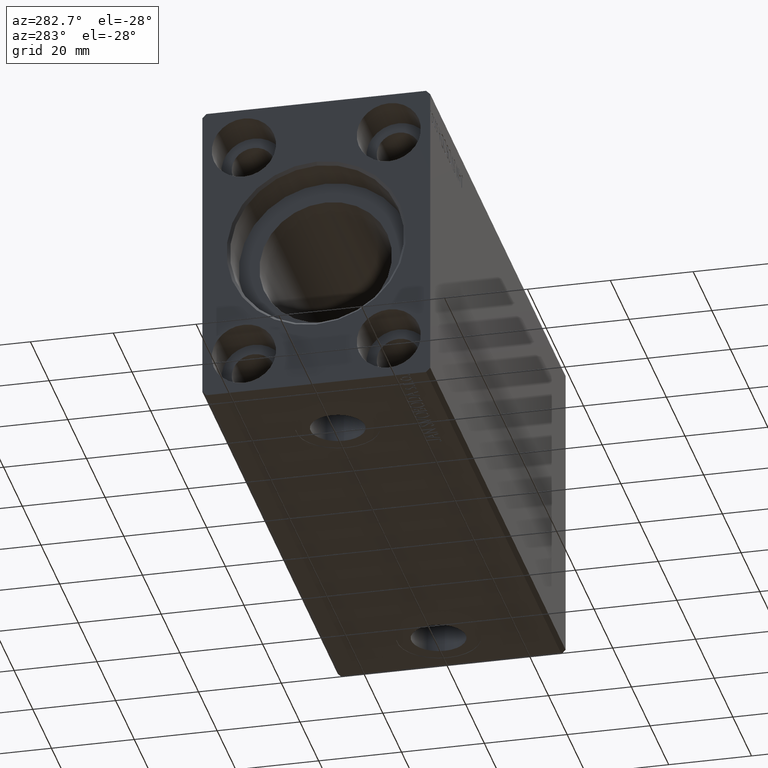
[diagram: clean part render]
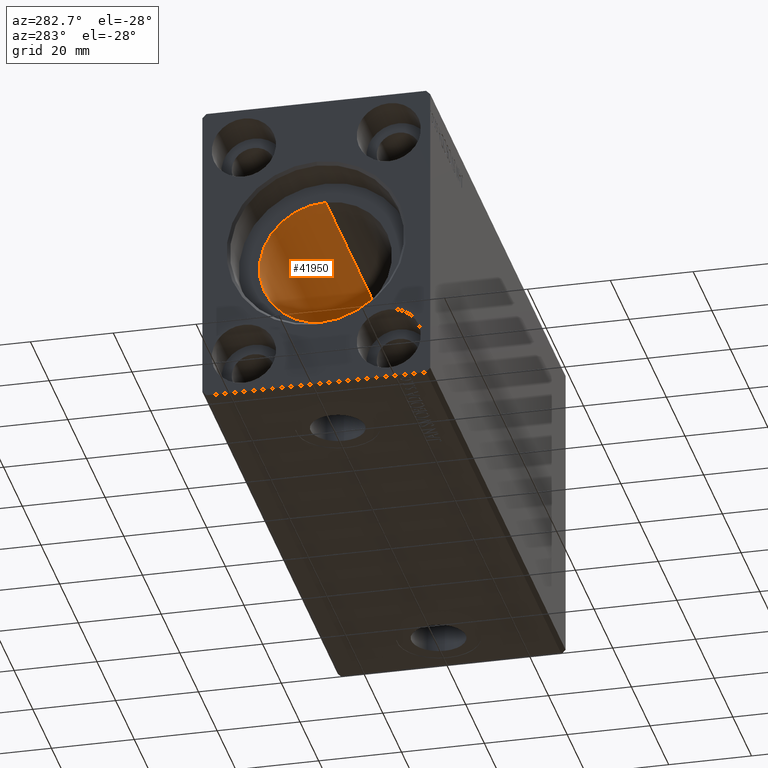
[diagram: same view with one face highlighted and labeled with its STEP entity id]
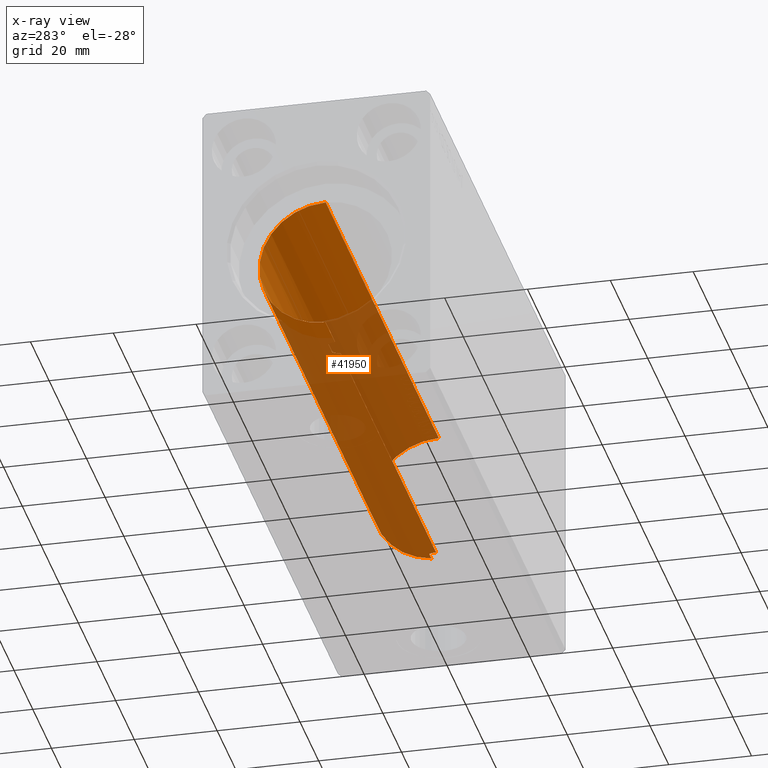
[diagram: x-ray of the same camera — body ghosted, the highlighted face saturated]
A machine part, auxiliary view. The second image highlights one B-rep face of the part: STEP entity #41950.
The next image is the same camera in x-ray: the body ghosted, the highlighted face saturated — about 65% of this face is hidden behind the body in this view.
In plain terms, the highlighted cylindrical surface (partial cylindrical patch) has radius 16 mm, axis along (-1, -0, -0).
Its self-contained STEP definition (entity closure, byte-faithful):
#190 = LINE ( 'NONE', #16563, #36250 ) ;
#837 = ORIENTED_EDGE ( 'NONE', *, *, #12826, .T. ) ;
#1495 = DIRECTION ( 'NONE',  ( -1.000000000000000000, -0.000000000000000000, -0.000000000000000000 ) ) ;
#1894 = VERTEX_POINT ( 'NONE', #35995 ) ;
#1908 = CARTESIAN_POINT ( 'NONE',  ( 20.90894763336742912, 1.786057109949259036, -15.89999999999998970 ) ) ;
#2556 = CARTESIAN_POINT ( 'NONE',  ( 20.36400824168861234, 0.8002234119869107154, -15.98070334047259777 ) ) ;
#3039 = CARTESIAN_POINT ( 'NONE',  ( 128.7082842211411560, 1.528580496451071635, -15.92742812959714982 ) ) ;
#3145 = FACE_OUTER_BOUND ( 'NONE', #22055, .T. ) ;
#3562 = CARTESIAN_POINT ( 'NONE',  ( 20.25000000000000000, 1.952197298178576320E-15, -16.00000000000000000 ) ) ;
#3863 = VERTEX_POINT ( 'NONE', #20881 ) ;
#3925 = DIRECTION ( 'NONE',  ( 0.000000000000000000, 0.000000000000000000, 1.000000000000000000 ) ) ;
#4565 = EDGE_CURVE ( 'NONE', #10942, #18548, #36695, .T. ) ;
#4993 = CARTESIAN_POINT ( 'NONE',  ( 25.73536268302067853, 0.3260974502564771282, -15.99746611559688780 ) ) ;
#5653 = CARTESIAN_POINT ( 'NONE',  ( 25.63617786229477957, 0.7997846173174859574, -15.98073294566550473 ) ) ;
#5775 = VERTEX_POINT ( 'NONE', #6710 ) ;
#5830 = B_SPLINE_CURVE_WITH_KNOTS ( 'NONE', 3,
 ( #11841, #15505, #38127, #9047, #2556, #18515, #41787, #31226, #32099, #1908 ),
 .UNSPECIFIED., .F., .F.,
 ( 4, 2, 2, 2, 4 ),
 ( 0.001937515079377276567, 0.002421672136522722528, 0.002905829193668168706, 0.003389986250813614450, 0.003874143307959060194 ),
 .UNSPECIFIED. ) ;
#5946 = CARTESIAN_POINT ( 'NONE',  ( 25.09105236663257088, 1.786057109949259036, -15.89999999999998970 ) ) ;
#6070 = AXIS2_PLACEMENT_3D ( 'NONE', #42586, #29654, #32887 ) ;
#6521 = LINE ( 'NONE', #12983, #9460 ) ;
#6710 = CARTESIAN_POINT ( 'NONE',  ( 131.1999999999999886, 1.786057109949259036, -15.89999999999998970 ) ) ;
#6912 = DIRECTION ( 'NONE',  ( -1.000000000000000000, -0.000000000000000000, -0.000000000000000000 ) ) ;
#6961 = VECTOR ( 'NONE', #13426, 1000.000000000000000 ) ;
#7261 = ORIENTED_EDGE ( 'NONE', *, *, #16522, .T. ) ;
#8231 = CARTESIAN_POINT ( 'NONE',  ( 25.30299467954352011, 1.537922561208759253, -15.92787311163533914 ) ) ;
#9047 = CARTESIAN_POINT ( 'NONE',  ( 20.32103554224154607, 0.6416550435731651625, -15.98791951246752241 ) ) ;
#9188 = VERTEX_POINT ( 'NONE', #5946 ) ;
#9313 = CARTESIAN_POINT ( 'NONE',  ( 128.2499999999999716, 0.1628529246558446664, -16.00000000000000000 ) ) ;
#9460 = VECTOR ( 'NONE', #1495, 1000.000000000000000 ) ;
#9980 = EDGE_CURVE ( 'NONE', #5775, #3863, #31987, .T. ) ;
#10942 = VERTEX_POINT ( 'NONE', #3562 ) ;
#11841 = CARTESIAN_POINT ( 'NONE',  ( 20.25000000000000000, 1.952197298178576320E-15, -16.00000000000000000 ) ) ;
#11903 = CARTESIAN_POINT ( 'NONE',  ( 128.5452919902453459, 1.250171241089536256, -15.95169574138015989 ) ) ;
#12649 = EDGE_CURVE ( 'NONE', #19444, #5775, #29703, .T. ) ;
#12826 = EDGE_CURVE ( 'NONE', #13636, #18548, #14546, .T. ) ;
#12983 = CARTESIAN_POINT ( 'NONE',  ( 131.1999999999999886, 1.786057109949259036, -15.89999999999998970 ) ) ;
#13426 = DIRECTION ( 'NONE',  ( -1.000000000000000000, -0.000000000000000000, -0.000000000000000000 ) ) ;
#13636 = VERTEX_POINT ( 'NONE', #16615 ) ;
#14259 = DIRECTION ( 'NONE',  ( 0.000000000000000000, 0.000000000000000000, 1.000000000000000000 ) ) ;
#14460 = CARTESIAN_POINT ( 'NONE',  ( 9.999999999999994671, 0.000000000000000000, 0.000000000000000000 ) ) ;
#14546 = CIRCLE ( 'NONE', #36596, 16.00000000000000000 ) ;
#14912 = CARTESIAN_POINT ( 'NONE',  ( 25.46669777805105639, 1.258673386848676135, -15.95335904956524864 ) ) ;
#15082 = ORIENTED_EDGE ( 'NONE', *, *, #12649, .F. ) ;
#15263 = ORIENTED_EDGE ( 'NONE', *, *, #36745, .T. ) ;
#15350 = CARTESIAN_POINT ( 'NONE',  ( 128.4763581403532555, 1.104555034037126848, -15.96255602784426841 ) ) ;
#15446 = VERTEX_POINT ( 'NONE', #38602 ) ;
#15505 = CARTESIAN_POINT ( 'NONE',  ( 20.25000000000000000, 0.1628529246558463039, -16.00000000000000000 ) ) ;
#15563 = CARTESIAN_POINT ( 'NONE',  ( 128.8030230027346192, 1.662044306363393842, -15.91393043707982002 ) ) ;
#15984 = CARTESIAN_POINT ( 'NONE',  ( 128.2643523021424699, 0.3237335850403373350, -15.99751506009603652 ) ) ;
#16013 = ORIENTED_EDGE ( 'NONE', *, *, #32327, .F. ) ;
#16295 = CYLINDRICAL_SURFACE ( 'NONE', #6070, 16.00000000000000000 ) ;
#16522 = EDGE_CURVE ( 'NONE', #19444, #13636, #23292, .T. ) ;
#16563 = CARTESIAN_POINT ( 'NONE',  ( 131.1999999999999886, 1.959434878635765131E-15, -16.00000000000000000 ) ) ;
#16615 = CARTESIAN_POINT ( 'NONE',  ( 9.999999999999994671, 0.000000000000000000, 16.00000000000000000 ) ) ;
#16630 = AXIS2_PLACEMENT_3D ( 'NONE', #33252, #23761, #3925 ) ;
#16820 = CARTESIAN_POINT ( 'NONE',  ( 131.1999999999999886, 0.000000000000000000, 16.00000000000000000 ) ) ;
#18515 = CARTESIAN_POINT ( 'NONE',  ( 20.47635814035335855, 1.104555034037125516, -15.96255602784426841 ) ) ;
#18548 = VERTEX_POINT ( 'NONE', #23489 ) ;
#19444 = VERTEX_POINT ( 'NONE', #23969 ) ;
#19592 = CARTESIAN_POINT ( 'NONE',  ( 25.67843830749630740, 0.6438297815899759469, -15.98783114994251697 ) ) ;
#19719 = VERTEX_POINT ( 'NONE', #32991 ) ;
#19777 = ORIENTED_EDGE ( 'NONE', *, *, #27106, .T. ) ;
#20881 = CARTESIAN_POINT ( 'NONE',  ( 128.9089476333673758, 1.786057109949259036, -15.89999999999998970 ) ) ;
#21136 = DIRECTION ( 'NONE',  ( -1.000000000000000000, 0.000000000000000000, 0.000000000000000000 ) ) ;
#22055 = EDGE_LOOP ( 'NONE', ( #16013, #41990, #38436, #15082, #7261, #837, #42142, #19777, #27140, #15263 ) ) ;
#22441 = CARTESIAN_POINT ( 'NONE',  ( 128.3210355422414750, 0.6416550435731687152, -15.98791951246752596 ) ) ;
#23292 = LINE ( 'NONE', #16820, #35318 ) ;
#23489 = CARTESIAN_POINT ( 'NONE',  ( 9.999999999999994671, 1.959434878635765131E-15, -16.00000000000000000 ) ) ;
#23761 = DIRECTION ( 'NONE',  ( -1.000000000000000000, 0.000000000000000000, 0.000000000000000000 ) ) ;
#23969 = CARTESIAN_POINT ( 'NONE',  ( 131.1999999999999886, 0.000000000000000000, 16.00000000000000000 ) ) ;
#25726 = CARTESIAN_POINT ( 'NONE',  ( 131.1999999999999886, 1.786057109949259036, -15.89999999999998970 ) ) ;
#27106 = EDGE_CURVE ( 'NONE', #10942, #19719, #5830, .T. ) ;
#27140 = ORIENTED_EDGE ( 'NONE', *, *, #38648, .F. ) ;
#28057 = CARTESIAN_POINT ( 'NONE',  ( 25.75000000000000355, 0.1629275007895856497, -16.00000000000000000 ) ) ;
#29654 = DIRECTION ( 'NONE',  ( -1.000000000000000000, -0.000000000000000000, -0.000000000000000000 ) ) ;
#29703 = CIRCLE ( 'NONE', #16630, 16.00000000000000000 ) ;
#29713 = DIRECTION ( 'NONE',  ( -1.000000000000000000, -0.000000000000000000, -0.000000000000000000 ) ) ;
#30471 = B_SPLINE_CURVE_WITH_KNOTS ( 'NONE', 3,
 ( #35180, #8231, #14912, #5653, #19592, #4993, #28057, #41197 ),
 .UNSPECIFIED., .F., .F.,
 ( 4, 2, 2, 4 ),
 ( 0.000000000000000000, 0.0009687575396886391509, 0.001453136309532957046, 0.001937515079377275266 ),
 .UNSPECIFIED. ) ;
#31055 = EDGE_CURVE ( 'NONE', #15446, #3863, #35483, .T. ) ;
#31226 = CARTESIAN_POINT ( 'NONE',  ( 20.70828422114123057, 1.528580496451064752, -15.92742812959714982 ) ) ;
#31723 = CARTESIAN_POINT ( 'NONE',  ( 128.9089476333673758, 1.786057109949259036, -15.89999999999998970 ) ) ;
#31987 = LINE ( 'NONE', #25726, #34453 ) ;
#32099 = CARTESIAN_POINT ( 'NONE',  ( 20.80302300273467964, 1.662044306363391177, -15.91393043707981292 ) ) ;
#32327 = EDGE_CURVE ( 'NONE', #15446, #1894, #190, .T. ) ;
#32887 = DIRECTION ( 'NONE',  ( 0.000000000000000000, 0.000000000000000000, 1.000000000000000000 ) ) ;
#32991 = CARTESIAN_POINT ( 'NONE',  ( 20.90894763336742912, 1.786057109949259036, -15.89999999999998970 ) ) ;
#33250 = CARTESIAN_POINT ( 'NONE',  ( 131.1999999999999886, 1.959434878635765131E-15, -16.00000000000000000 ) ) ;
#33252 = CARTESIAN_POINT ( 'NONE',  ( 131.1999999999999886, 0.000000000000000000, 0.000000000000000000 ) ) ;
#34453 = VECTOR ( 'NONE', #38016, 1000.000000000000000 ) ;
#35180 = CARTESIAN_POINT ( 'NONE',  ( 25.09105236663257088, 1.786057109949259036, -15.89999999999998970 ) ) ;
#35318 = VECTOR ( 'NONE', #6912, 1000.000000000000000 ) ;
#35483 = B_SPLINE_CURVE_WITH_KNOTS ( 'NONE', 3,
 ( #38185, #9313, #15984, #22441, #38830, #15350, #11903, #3039, #15563, #31723 ),
 .UNSPECIFIED., .F., .F.,
 ( 4, 2, 2, 2, 4 ),
 ( 0.001937515079377272013, 0.002421672136522719492, 0.002905829193668166537, 0.003389986250813613582, 0.003874143307959060627 ),
 .UNSPECIFIED. ) ;
#35995 = CARTESIAN_POINT ( 'NONE',  ( 25.75000000000000000, 1.966672448372719994E-15, -16.00000000000000000 ) ) ;
#36250 = VECTOR ( 'NONE', #29713, 1000.000000000000000 ) ;
#36596 = AXIS2_PLACEMENT_3D ( 'NONE', #14460, #21136, #14259 ) ;
#36695 = LINE ( 'NONE', #33250, #6961 ) ;
#36745 = EDGE_CURVE ( 'NONE', #9188, #1894, #30471, .T. ) ;
#38016 = DIRECTION ( 'NONE',  ( -1.000000000000000000, -0.000000000000000000, -0.000000000000000000 ) ) ;
#38127 = CARTESIAN_POINT ( 'NONE',  ( 20.26435230214253380, 0.3237335850403343929, -15.99751506009603652 ) ) ;
#38185 = CARTESIAN_POINT ( 'NONE',  ( 128.2499999999999432, 1.952197214168045357E-15, -16.00000000000000000 ) ) ;
#38436 = ORIENTED_EDGE ( 'NONE', *, *, #9980, .F. ) ;
#38602 = CARTESIAN_POINT ( 'NONE',  ( 128.2499999999999432, 1.952197214168045357E-15, -16.00000000000000000 ) ) ;
#38648 = EDGE_CURVE ( 'NONE', #9188, #19719, #6521, .T. ) ;
#38830 = CARTESIAN_POINT ( 'NONE',  ( 128.3640082416885946, 0.8002234119869110485, -15.98070334047259777 ) ) ;
#41197 = CARTESIAN_POINT ( 'NONE',  ( 25.75000000000000000, 1.966672448372719994E-15, -16.00000000000000000 ) ) ;
#41787 = CARTESIAN_POINT ( 'NONE',  ( 20.54529199024537789, 1.250171241089528928, -15.95169574138015278 ) ) ;
#41950 = ADVANCED_FACE ( 'NONE', ( #3145 ), #16295, .F. ) ;
#41990 = ORIENTED_EDGE ( 'NONE', *, *, #31055, .T. ) ;
#42142 = ORIENTED_EDGE ( 'NONE', *, *, #4565, .F. ) ;
#42586 = CARTESIAN_POINT ( 'NONE',  ( 131.1999999999999886, 0.000000000000000000, 0.000000000000000000 ) ) ;